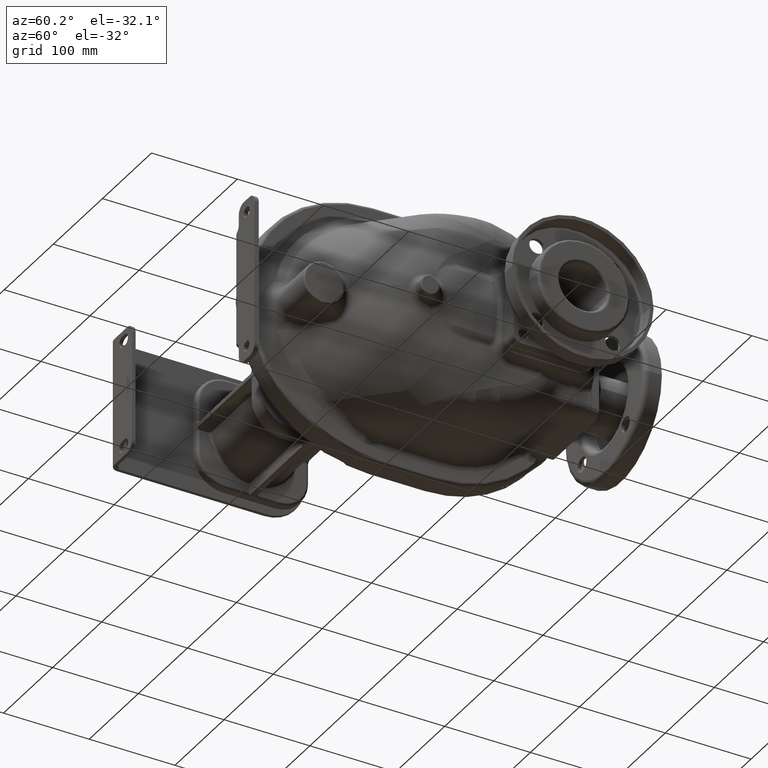
[diagram: clean part render]
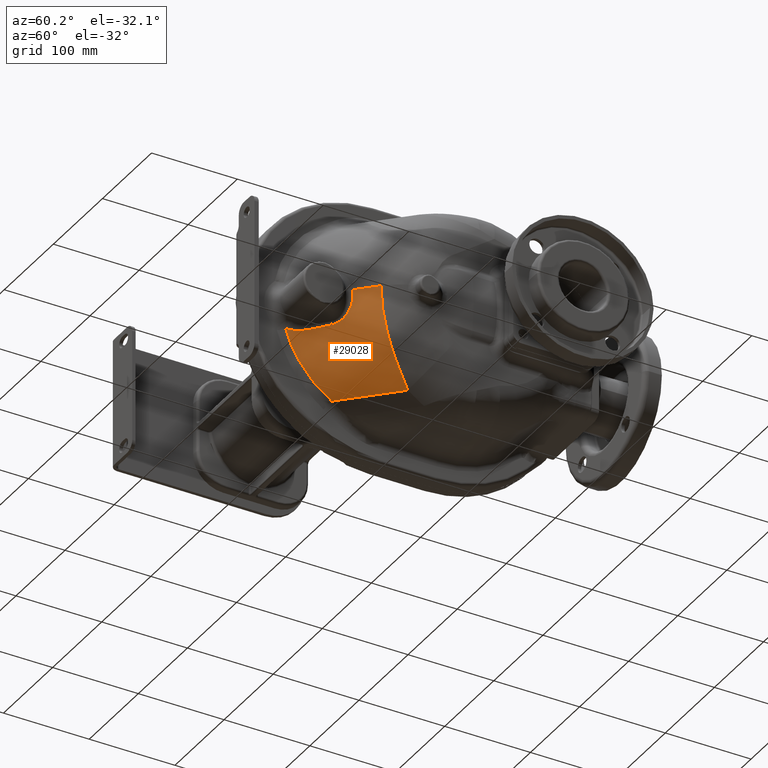
[diagram: same view with one face highlighted and labeled with its STEP entity id]
A machine part, auxiliary view. The second image highlights one B-rep face of the part: STEP entity #29028.
In plain terms, the highlighted face is a SurfaceOfExtrusion surface.
Its self-contained STEP definition (entity closure, byte-faithful):
#3364=CARTESIAN_POINT('',(9.036484673859E0,-8.865028538590E1,
-4.225359777129E1));
#3365=CARTESIAN_POINT('',(8.567354140243E0,-8.910445967960E1,
-4.230272647808E1));
#3366=CARTESIAN_POINT('',(7.660773724450E0,-8.998637526525E1,
-4.238364991512E1));
#3367=CARTESIAN_POINT('',(6.404374484326E0,-9.122090652411E1,
-4.245513230496E1));
#3368=CARTESIAN_POINT('',(5.225063754235E0,-9.239178036355E1,
-4.248268625662E1));
#3369=CARTESIAN_POINT('',(4.104485231569E0,-9.351611516540E1,
-4.247042217464E1));
#3370=CARTESIAN_POINT('',(3.028398013149E0,-9.460739932399E1,
-4.242076526888E1));
#3371=CARTESIAN_POINT('',(1.987343916571E0,-9.567456874212E1,
-4.233526138370E1));
#3372=CARTESIAN_POINT('',(9.770666300559E-1,-9.672146884932E1,
-4.221499214659E1));
#3373=CARTESIAN_POINT('',(-3.911060525644E-3,-9.774910892549E1,
-4.206113353092E1));
#3374=CARTESIAN_POINT('',(-9.576008832840E-1,-9.875907171930E1,
-4.187465243945E1));
#3375=CARTESIAN_POINT('',(-1.885789299034E0,-9.975274591838E1,
-4.165633663829E1));
#3376=CARTESIAN_POINT('',(-2.789000977753E0,-1.007301953211E2,
-4.140711609314E1));
#3377=CARTESIAN_POINT('',(-3.667774195791E0,-1.016914922538E2,
-4.112788023599E1));
#3378=CARTESIAN_POINT('',(-4.522446660868E0,-1.026364914765E2,
-4.081952584300E1));
#3379=CARTESIAN_POINT('',(-5.353311253366E0,-1.035649916730E2,
-4.048294611200E1));
#3380=CARTESIAN_POINT('',(-6.160435574944E0,-1.044765399618E2,
-4.011909191548E1));
#3381=CARTESIAN_POINT('',(-6.943924930935E0,-1.053707117381E2,
-3.972892331272E1));
#3382=CARTESIAN_POINT('',(-7.703836074488E0,-1.062470294961E2,
-3.931340299233E1));
#3383=CARTESIAN_POINT('',(-8.440228710153E0,-1.071050046526E2,
-3.887352931134E1));
#3384=CARTESIAN_POINT('',(-9.153182910151E0,-1.079441860638E2,
-3.841027378736E1));
#3385=CARTESIAN_POINT('',(-9.612867118891E0,-1.084907261164E2,
-3.808656122784E1));
#3386=CARTESIAN_POINT('',(-9.838894303583E0,-1.087607932844E2,
-3.792109184854E1));
#3388=CARTESIAN_POINT('',(2.355913120477E1,-7.455913120477E1,
-4.080452833240E1));
#3389=CARTESIAN_POINT('',(2.261398608233E1,-7.548580450442E1,
-4.086792782465E1));
#3390=CARTESIAN_POINT('',(2.059660271531E1,-7.745691561093E1,
-4.102640498456E1));
#3391=CARTESIAN_POINT('',(1.720908875820E1,-8.074666673672E1,
-4.135835666690E1));
#3392=CARTESIAN_POINT('',(1.340041501602E1,-8.443056651411E1,
-4.177724107024E1));
#3393=CARTESIAN_POINT('',(1.054146957112E1,-8.719323990908E1,
-4.209601310986E1));
#3394=CARTESIAN_POINT('',(9.036484673859E0,-8.865028538590E1,
-4.225359777129E1));
#3396=CARTESIAN_POINT('',(4.264880467959E1,-6.057911738177E1,-5.E0));
#3397=CARTESIAN_POINT('',(4.268035817544E1,-6.054756761221E1,
-5.368596150241E0));
#3398=CARTESIAN_POINT('',(4.273472857060E1,-6.049001244769E1,
-6.107907406461E0));
#3399=CARTESIAN_POINT('',(4.279012479193E1,-6.042008070270E1,
-7.225593659112E0));
#3400=CARTESIAN_POINT('',(4.281893177029E1,-6.036691423640E1,
-8.344567392840E0));
#3401=CARTESIAN_POINT('',(4.282095298289E1,-6.033088534525E1,
-9.459133599527E0));
#3402=CARTESIAN_POINT('',(4.279653666154E1,-6.031182062282E1,
-1.056813447670E1));
#3403=CARTESIAN_POINT('',(4.274566149710E1,-6.030967083988E1,
-1.167551319683E1));
#3404=CARTESIAN_POINT('',(4.266837891649E1,-6.032441645763E1,
-1.278109517951E1));
#3405=CARTESIAN_POINT('',(4.256478612696E1,-6.035603957198E1,
-1.388414241522E1));
#3406=CARTESIAN_POINT('',(4.243528327537E1,-6.040450010694E1,
-1.498061883398E1));
#3407=CARTESIAN_POINT('',(4.228048684685E1,-6.046960310811E1,
-1.606750307398E1));
#3408=CARTESIAN_POINT('',(4.210089258053E1,-6.055120782085E1,
-1.714346692865E1));
#3409=CARTESIAN_POINT('',(4.189715216869E1,-6.064912444714E1,
-1.820651911078E1));
#3410=CARTESIAN_POINT('',(4.167012508911E1,-6.076305799461E1,
-1.925434305591E1));
#3411=CARTESIAN_POINT('',(4.142070148441E1,-6.089270682023E1,
-2.028502684924E1));
#3412=CARTESIAN_POINT('',(4.114984766789E1,-6.103772336746E1,
-2.129685842940E1));
#3413=CARTESIAN_POINT('',(4.085858254007E1,-6.119774489270E1,
-2.228820520080E1));
#3414=CARTESIAN_POINT('',(4.054801904112E1,-6.137234200535E1,
-2.325754833246E1));
#3415=CARTESIAN_POINT('',(4.021928259324E1,-6.156108909023E1,
-2.420351113453E1));
#3416=CARTESIAN_POINT('',(3.987357726588E1,-6.176349396598E1,
-2.512483985482E1));
#3417=CARTESIAN_POINT('',(3.951204816342E1,-6.197910436365E1,
-2.602054831186E1));
#3418=CARTESIAN_POINT('',(3.913587747186E1,-6.220742319864E1,
-2.688978602166E1));
#3419=CARTESIAN_POINT('',(3.874615169299E1,-6.244800636112E1,
-2.773199570316E1));
#3420=CARTESIAN_POINT('',(3.834396358899E1,-6.270038786989E1,
-2.854670491178E1));
#3421=CARTESIAN_POINT('',(3.793040199987E1,-6.296409023107E1,
-2.933350794530E1));
#3422=CARTESIAN_POINT('',(3.750652628331E1,-6.323863739406E1,
-3.009211300402E1));
#3423=CARTESIAN_POINT('',(3.707334277184E1,-6.352356827881E1,
-3.082236859134E1));
#3424=CARTESIAN_POINT('',(3.663181696504E1,-6.381843474932E1,
-3.152419238021E1));
#3425=CARTESIAN_POINT('',(3.618290156982E1,-6.412277072710E1,
-3.219757437936E1));
#3426=CARTESIAN_POINT('',(3.572742359893E1,-6.443618272688E1,
-3.284266665850E1));
#3427=CARTESIAN_POINT('',(3.526610314823E1,-6.475833011193E1,
-3.345976733116E1));
#3428=CARTESIAN_POINT('',(3.479954695424E1,-6.508893523206E1,
-3.404929049847E1));
#3429=CARTESIAN_POINT('',(3.432822172246E1,-6.542780582842E1,
-3.461177282257E1));
#3430=CARTESIAN_POINT('',(3.385267269346E1,-6.577468312080E1,
-3.514759084725E1));
#3431=CARTESIAN_POINT('',(3.337342176119E1,-6.612930926792E1,
-3.565711976499E1));
#3432=CARTESIAN_POINT('',(3.289096972949E1,-6.649143102770E1,
-3.614071127613E1));
#3433=CARTESIAN_POINT('',(3.240576372870E1,-6.686082344170E1,
-3.659873304617E1));
#3434=CARTESIAN_POINT('',(3.191821527243E1,-6.723727457050E1,
-3.703155856120E1));
#3435=CARTESIAN_POINT('',(3.142867319207E1,-6.762061462144E1,
-3.743956117942E1));
#3436=CARTESIAN_POINT('',(3.093746673196E1,-6.801067578082E1,
-3.782310533607E1));
#3437=CARTESIAN_POINT('',(3.044488327804E1,-6.840731976273E1,
-3.818252946016E1));
#3438=CARTESIAN_POINT('',(2.995127744402E1,-6.881034191112E1,
-3.851810120750E1));
#3439=CARTESIAN_POINT('',(2.945697025293E1,-6.921955681616E1,
-3.883007828050E1));
#3440=CARTESIAN_POINT('',(2.896234071172E1,-6.963471939496E1,
-3.911866459925E1));
#3441=CARTESIAN_POINT('',(2.846769074688E1,-7.005563551667E1,
-3.938410154699E1));
#3442=CARTESIAN_POINT('',(2.797325952440E1,-7.048215942156E1,
-3.962662557595E1));
#3443=CARTESIAN_POINT('',(2.747922818843E1,-7.091418289327E1,
-3.984649125456E1));
#3444=CARTESIAN_POINT('',(2.698568301145E1,-7.135168600218E1,
-4.004392310399E1));
#3445=CARTESIAN_POINT('',(2.649281788769E1,-7.179454079744E1,
-4.021909618174E1));
#3446=CARTESIAN_POINT('',(2.600092638922E1,-7.224253365450E1,
-4.037208870906E1));
#3447=CARTESIAN_POINT('',(2.550999941002E1,-7.269570596999E1,
-4.050309830111E1));
#3448=CARTESIAN_POINT('',(2.501982315592E1,-7.315431347521E1,
-4.061224191511E1));
#3449=CARTESIAN_POINT('',(2.453085240469E1,-7.361797123324E1,
-4.069949647084E1));
#3450=CARTESIAN_POINT('',(2.404360381527E1,-7.408623266672E1,
-4.076479275773E1));
#3451=CARTESIAN_POINT('',(2.372037910160E1,-7.440103583064E1,
-4.079371013577E1));
#3452=CARTESIAN_POINT('',(2.355913120477E1,-7.455913120477E1,
-4.080452833240E1));
#3454=DIRECTION('',(7.071067811865E-1,7.071067811865E-1,0.E0));
#3455=VECTOR('',#3454,2.948447187635E1);
#3456=CARTESIAN_POINT('',(4.264880467959E1,-6.057911738177E1,-5.E0));
#3457=LINE('',#3456,#3455);
#3458=CARTESIAN_POINT('',(6.349747468306E1,-3.973044737830E1,-5.E0));
#3459=CARTESIAN_POINT('',(6.349747469583E1,-3.973044697408E1,
-6.034536997938E0));
#3460=CARTESIAN_POINT('',(6.349262854527E1,-3.971020905824E1,
-8.104642207348E0));
#3461=CARTESIAN_POINT('',(6.347075087034E1,-3.961899000533E1,
-1.121122971413E1));
#3462=CARTESIAN_POINT('',(6.343417030181E1,-3.946686811769E1,
-1.431690827398E1));
#3463=CARTESIAN_POINT('',(6.338278832285E1,-3.925388291458E1,
-1.741953993564E1));
#3464=CARTESIAN_POINT('',(6.331647800851E1,-3.898016201200E1,
-2.051707996895E1));
#3465=CARTESIAN_POINT('',(6.323506029614E1,-3.864594801399E1,
-2.360749325080E1));
#3466=CARTESIAN_POINT('',(6.313835029919E1,-3.825155192240E1,
-2.668873802066E1));
#3467=CARTESIAN_POINT('',(6.302611822071E1,-3.779741843352E1,
-2.975866897294E1));
#3468=CARTESIAN_POINT('',(6.289810146397E1,-3.728396363557E1,
-3.281576466400E1));
#3469=CARTESIAN_POINT('',(6.275398395780E1,-3.671161974538E1,
-3.585869311218E1));
#3470=CARTESIAN_POINT('',(6.259338008173E1,-3.608085930181E1,
-3.888619113303E1));
#3471=CARTESIAN_POINT('',(6.241591515637E1,-3.539227911530E1,
-4.189648301819E1));
#3472=CARTESIAN_POINT('',(6.222116520836E1,-3.464667889660E1,
-4.488745218995E1));
#3473=CARTESIAN_POINT('',(6.200870674300E1,-3.384490022087E1,
-4.785707835807E1));
#3474=CARTESIAN_POINT('',(6.177804727938E1,-3.298792763258E1,
-5.080331856760E1));
#3475=CARTESIAN_POINT('',(6.152869333773E1,-3.207681660695E1,
-5.372413694279E1));
#3476=CARTESIAN_POINT('',(6.126008875699E1,-3.111274677118E1,
-5.661751473908E1));
#3477=CARTESIAN_POINT('',(6.097171160382E1,-3.009714096368E1,
-5.948100341886E1));
#3478=CARTESIAN_POINT('',(6.066299183671E1,-2.903153489224E1,
-6.231228534014E1));
#3479=CARTESIAN_POINT('',(6.033338433823E1,-2.791770935325E1,
-6.510875905877E1));
#3480=CARTESIAN_POINT('',(5.998233255773E1,-2.675760543909E1,
-6.786785067322E1));
#3481=CARTESIAN_POINT('',(5.960931543531E1,-2.555345113423E1,
-7.058673112656E1));
#3482=CARTESIAN_POINT('',(5.921383898104E1,-2.430768648614E1,
-7.326253857441E1));
#3483=CARTESIAN_POINT('',(5.879547096438E1,-2.302305300995E1,
-7.589222447914E1));
#3484=CARTESIAN_POINT('',(5.835383044742E1,-2.170251547091E1,
-7.847275758879E1));
#3485=CARTESIAN_POINT('',(5.788861933260E1,-2.034930795805E1,
-8.100104618230E1));
#3486=CARTESIAN_POINT('',(5.739962322698E1,-1.896688940009E1,
-8.347404657274E1));
#3487=CARTESIAN_POINT('',(5.688674466963E1,-1.755894913735E1,
-8.588874384936E1));
#3488=CARTESIAN_POINT('',(5.635000305098E1,-1.612937604311E1,
-8.824222347652E1));
#3489=CARTESIAN_POINT('',(5.578955832984E1,-1.468226763840E1,
-9.053166131765E1));
#3490=CARTESIAN_POINT('',(5.520567951736E1,-1.322169592493E1,
-9.275463036059E1));
#3491=CARTESIAN_POINT('',(5.459879031884E1,-1.175184467292E1,
-9.490887530533E1));
#3492=CARTESIAN_POINT('',(5.396939042751E1,-1.027695406452E1,
-9.699244807655E1));
#3493=CARTESIAN_POINT('',(5.331840041034E1,-8.801316502194E0,
-9.900338254652E1));
#3494=CARTESIAN_POINT('',(5.264650618843E1,-7.328805567493E0,
-1.009407496669E2));
#3495=CARTESIAN_POINT('',(5.195434474524E1,-5.862577646732E0,
-1.028045519849E2));
#3496=CARTESIAN_POINT('',(5.124257990403E1,-4.406037376131E0,
-1.045947215127E2));
#3497=CARTESIAN_POINT('',(5.051237938289E1,-2.962182554692E0,
-1.063113094864E2));
#3498=CARTESIAN_POINT('',(4.976553613114E1,-1.533705385553E0,
-1.079543053936E2));
#3499=CARTESIAN_POINT('',(4.925697677224E1,-5.946815742922E-1,
-1.090003938537E2));
#3500=CARTESIAN_POINT('',(4.9E1,-1.287565176259E-1,-1.095115623588E2));
#3502=DIRECTION('',(-7.071068106080E-1,-7.071067517651E-1,4.160645979085E-8));
#3503=VECTOR('',#3502,7.990306627401E1);
#3504=CARTESIAN_POINT('',(4.9E1,-1.287565176259E-1,-1.095115623588E2));
#3505=LINE('',#3504,#3503);
#3506=CARTESIAN_POINT('',(-7.5E0,-5.662875651763E1,-1.095115623587E2));
#3507=CARTESIAN_POINT('',(-7.543701661136E0,-5.739033927039E1,
-1.090039263959E2));
#3508=CARTESIAN_POINT('',(-7.629400788982E0,-5.890051987191E1,
-1.079745002439E2));
#3509=CARTESIAN_POINT('',(-7.753238429435E0,-6.112636996382E1,
-1.063885317633E2));
#3510=CARTESIAN_POINT('',(-7.872395093534E0,-6.331223447142E1,
-1.047614761047E2));
#3511=CARTESIAN_POINT('',(-7.987018938979E0,-6.545760114460E1,
-1.030940561353E2));
#3512=CARTESIAN_POINT('',(-8.097209205785E0,-6.756196314381E1,
-1.013869851564E2));
#3513=CARTESIAN_POINT('',(-8.203039306093E0,-6.962480383992E1,
-9.964096533427E1));
#3514=CARTESIAN_POINT('',(-8.304637399412E0,-7.164570096389E1,
-9.785667313635E1));
#3515=CARTESIAN_POINT('',(-8.402165514987E0,-7.362441267536E1,
-9.603464403248E1));
#3516=CARTESIAN_POINT('',(-8.495760121735E0,-7.556068889779E1,
-9.417537447079E1));
#3517=CARTESIAN_POINT('',(-8.585541728697E0,-7.745413471418E1,
-9.227947327321E1));
#3518=CARTESIAN_POINT('',(-8.671611825619E0,-7.930416707674E1,
-9.034773730828E1));
#3519=CARTESIAN_POINT('',(-8.754052882623E0,-8.111024627716E1,
-8.838092105638E1));
#3520=CARTESIAN_POINT('',(-8.832998269662E0,-8.287186833472E1,
-8.637981655424E1));
#3521=CARTESIAN_POINT('',(-8.908573912743E0,-8.458853513860E1,
-8.434522589538E1));
#3522=CARTESIAN_POINT('',(-8.980886321821E0,-8.625975359984E1,
-8.227794528924E1));
#3523=CARTESIAN_POINT('',(-9.050025403428E0,-8.788501326112E1,
-8.017879682632E1));
#3524=CARTESIAN_POINT('',(-9.116066719458E0,-8.946380588596E1,
-7.804860770072E1));
#3525=CARTESIAN_POINT('',(-9.179061592277E0,-9.099562391779E1,
-7.588819727984E1));
#3526=CARTESIAN_POINT('',(-9.239129632844E0,-9.248008991612E1,
-7.369831430951E1));
#3527=CARTESIAN_POINT('',(-9.296378910033E0,-9.391682923959E1,
-7.147969640409E1));
#3528=CARTESIAN_POINT('',(-9.350898419752E0,-9.530543437481E1,
-6.923311270827E1));
#3529=CARTESIAN_POINT('',(-9.402755914754E0,-9.664535245746E1,
-6.695957378518E1));
#3530=CARTESIAN_POINT('',(-9.452004913713E0,-9.793605136859E1,
-6.466009204482E1));
#3531=CARTESIAN_POINT('',(-9.498682754420E0,-9.917704448678E1,
-6.233562144868E1));
#3532=CARTESIAN_POINT('',(-9.542889426294E0,-1.003679813396E2,
-5.998701253554E1));
#3533=CARTESIAN_POINT('',(-9.584707200497E0,-1.015085037625E2,
-5.761511998130E1));
#3534=CARTESIAN_POINT('',(-9.624200545723E0,-1.025982044891E2,
-5.522090048293E1));
#3535=CARTESIAN_POINT('',(-9.661416703632E0,-1.036366329807E2,
-5.280543097937E1));
#3536=CARTESIAN_POINT('',(-9.696386568285E0,-1.046233568412E2,
-5.036978514943E1));
#3537=CARTESIAN_POINT('',(-9.729131886943E0,-1.055579940909E2,
-4.791495390966E1));
#3538=CARTESIAN_POINT('',(-9.759734432017E0,-1.064402488516E2,
-4.544191507518E1));
#3539=CARTESIAN_POINT('',(-9.788254852346E0,-1.072698165729E2,
-4.295166151459E1));
#3540=CARTESIAN_POINT('',(-9.814738064290E0,-1.080464085670E2,
-4.044517984290E1));
#3541=CARTESIAN_POINT('',(-9.831058349531E0,-1.085286042557E2,
-3.876404696494E1));
#3542=CARTESIAN_POINT('',(-9.838881868691E0,-1.087607819797E2,
-3.792111471783E1));
#22201=CARTESIAN_POINT('',(4.9E1,-1.287565176259E-1,-1.095115623588E2));
#22203=VERTEX_POINT('',#22201);
#22239=VERTEX_POINT('',#3458);
#22450=VERTEX_POINT('',#3364);
#22451=VERTEX_POINT('',#3386);
#22452=VERTEX_POINT('',#3388);
#22454=VERTEX_POINT('',#3396);
#22525=CARTESIAN_POINT('',(-7.500002350819E0,-5.662875416671E1,
-1.095115590343E2));
#22526=VERTEX_POINT('',#22525);
#29006=CARTESIAN_POINT('',(-8.75E1,-6.272792206136E1,-5.E0));
#29007=DIRECTION('',(7.071067811865E-1,7.071067811865E-1,0.E0));
#29008=DIRECTION('',(7.071067811865E-1,-7.071067811865E-1,0.E0));
#29009=AXIS2_PLACEMENT_3D('',#29006,#29007,#29008);
#29014=DIRECTION('',(7.071067811865E-1,7.071067811865E-1,0.E0));
#29015=VECTOR('',#29014,1.E0);
#29016=SURFACE_OF_LINEAR_EXTRUSION('',#29010,#29015);
#29018=ORIENTED_EDGE('',*,*,#29017,.F.);
#29020=ORIENTED_EDGE('',*,*,#29019,.F.);
#29021=ORIENTED_EDGE('',*,*,#28990,.F.);
#29022=ORIENTED_EDGE('',*,*,#28725,.T.);
#29023=ORIENTED_EDGE('',*,*,#25038,.T.);
#29024=ORIENTED_EDGE('',*,*,#28140,.T.);
#29025=ORIENTED_EDGE('',*,*,#28217,.T.);
#29026=EDGE_LOOP('',(#29018,#29020,#29021,#29022,#29023,#29024,#29025));
#29027=FACE_OUTER_BOUND('',#29026,.F.);
#3387=B_SPLINE_CURVE_WITH_KNOTS('',3,(#3364,#3365,#3366,#3367,#3368,#3369,#3370,
#3371,#3372,#3373,#3374,#3375,#3376,#3377,#3378,#3379,#3380,#3381,#3382,#3383,
#3384,#3385,#3386),.UNSPECIFIED.,.F.,.F.,(4,1,1,1,1,1,1,1,1,1,1,1,1,1,1,1,1,1,1,
1,4),(0.E0,5.E-2,1.E-1,1.5E-1,2.E-1,2.5E-1,3.E-1,3.5E-1,4.E-1,4.5E-1,5.E-1,
5.5E-1,6.E-1,6.5E-1,7.E-1,7.5E-1,8.E-1,8.5E-1,9.E-1,9.5E-1,1.E0),.UNSPECIFIED.);
#3395=B_SPLINE_CURVE_WITH_KNOTS('',3,(#3388,#3389,#3390,#3391,#3392,#3393,
#3394),.UNSPECIFIED.,.F.,.F.,(4,1,1,1,4),(0.E0,2.5E-1,5.E-1,7.5E-1,1.E0),
.UNSPECIFIED.);
#3453=B_SPLINE_CURVE_WITH_KNOTS('',3,(#3396,#3397,#3398,#3399,#3400,#3401,#3402,
#3403,#3404,#3405,#3406,#3407,#3408,#3409,#3410,#3411,#3412,#3413,#3414,#3415,
#3416,#3417,#3418,#3419,#3420,#3421,#3422,#3423,#3424,#3425,#3426,#3427,#3428,
#3429,#3430,#3431,#3432,#3433,#3434,#3435,#3436,#3437,#3438,#3439,#3440,#3441,
#3442,#3443,#3444,#3445,#3446,#3447,#3448,#3449,#3450,#3451,#3452),
.UNSPECIFIED.,.F.,.F.,(4,1,1,1,1,1,1,1,1,1,1,1,1,1,1,1,1,1,1,1,1,1,1,1,1,1,1,1,
1,1,1,1,1,1,1,1,1,1,1,1,1,1,1,1,1,1,1,1,1,1,1,1,1,1,4),(0.E0,1.851851851852E-2,
3.703703703704E-2,5.555555555556E-2,7.407407407407E-2,9.259259259259E-2,
1.111111111111E-1,1.296296296296E-1,1.481481481481E-1,1.666666666667E-1,
1.851851851852E-1,2.037037037037E-1,2.222222222222E-1,2.407407407407E-1,
2.592592592593E-1,2.777777777778E-1,2.962962962963E-1,3.148148148148E-1,
3.333333333333E-1,3.518518518519E-1,3.703703703704E-1,3.888888888889E-1,
4.074074074074E-1,4.259259259259E-1,4.444444444444E-1,4.629629629630E-1,
4.814814814815E-1,5.E-1,5.185185185185E-1,5.370370370370E-1,5.555555555556E-1,
5.740740740741E-1,5.925925925926E-1,6.111111111111E-1,6.296296296296E-1,
6.481481481481E-1,6.666666666667E-1,6.851851851852E-1,7.037037037037E-1,
7.222222222222E-1,7.407407407407E-1,7.592592592593E-1,7.777777777778E-1,
7.962962962963E-1,8.148148148148E-1,8.333333333333E-1,8.518518518519E-1,
8.703703703704E-1,8.888888888889E-1,9.074074074074E-1,9.259259259259E-1,
9.444444444444E-1,9.629629629630E-1,9.814814814815E-1,1.E0),.UNSPECIFIED.);
#3501=B_SPLINE_CURVE_WITH_KNOTS('',3,(#3458,#3459,#3460,#3461,#3462,#3463,#3464,
#3465,#3466,#3467,#3468,#3469,#3470,#3471,#3472,#3473,#3474,#3475,#3476,#3477,
#3478,#3479,#3480,#3481,#3482,#3483,#3484,#3485,#3486,#3487,#3488,#3489,#3490,
#3491,#3492,#3493,#3494,#3495,#3496,#3497,#3498,#3499,#3500),.UNSPECIFIED.,.F.,
.F.,(4,1,1,1,1,1,1,1,1,1,1,1,1,1,1,1,1,1,1,1,1,1,1,1,1,1,1,1,1,1,1,1,1,1,1,1,1,
1,1,1,4),(0.E0,2.5E-2,5.E-2,7.5E-2,1.E-1,1.25E-1,1.5E-1,1.75E-1,2.E-1,2.25E-1,
2.5E-1,2.75E-1,3.E-1,3.25E-1,3.5E-1,3.75E-1,4.E-1,4.25E-1,4.5E-1,4.75E-1,5.E-1,
5.25E-1,5.5E-1,5.75E-1,6.E-1,6.25E-1,6.5E-1,6.75E-1,7.E-1,7.25E-1,7.5E-1,
7.75E-1,8.E-1,8.25E-1,8.5E-1,8.75E-1,9.E-1,9.25E-1,9.5E-1,9.75E-1,1.E0),
.UNSPECIFIED.);
#3543=B_SPLINE_CURVE_WITH_KNOTS('',3,(#3506,#3507,#3508,#3509,#3510,#3511,#3512,
#3513,#3514,#3515,#3516,#3517,#3518,#3519,#3520,#3521,#3522,#3523,#3524,#3525,
#3526,#3527,#3528,#3529,#3530,#3531,#3532,#3533,#3534,#3535,#3536,#3537,#3538,
#3539,#3540,#3541,#3542),.UNSPECIFIED.,.F.,.F.,(4,1,1,1,1,1,1,1,1,1,1,1,1,1,1,1,
1,1,1,1,1,1,1,1,1,1,1,1,1,1,1,1,1,1,4),(0.E0,2.941176470588E-2,
5.882352941176E-2,8.823529411765E-2,1.176470588235E-1,1.470588235294E-1,
1.764705882353E-1,2.058823529412E-1,2.352941176471E-1,2.647058823529E-1,
2.941176470588E-1,3.235294117647E-1,3.529411764706E-1,3.823529411765E-1,
4.117647058824E-1,4.411764705882E-1,4.705882352941E-1,5.E-1,5.294117647059E-1,
5.588235294118E-1,5.882352941176E-1,6.176470588235E-1,6.470588235294E-1,
6.764705882353E-1,7.058823529412E-1,7.352941176471E-1,7.647058823529E-1,
7.941176470588E-1,8.235294117647E-1,8.529411764706E-1,8.823529411765E-1,
9.117647058824E-1,9.411764705882E-1,9.705882352941E-1,1.E0),.UNSPECIFIED.);
#25038=EDGE_CURVE('',#22239,#22203,#3501,.T.);
#28140=EDGE_CURVE('',#22203,#22526,#3505,.T.);
#28217=EDGE_CURVE('',#22526,#22451,#3543,.T.);
#28725=EDGE_CURVE('',#22454,#22239,#3457,.T.);
#28990=EDGE_CURVE('',#22454,#22452,#3453,.T.);
#29010=ELLIPSE('',#29009,9.050966799188E1,1.28E2);
#29017=EDGE_CURVE('',#22450,#22451,#3387,.T.);
#29019=EDGE_CURVE('',#22452,#22450,#3395,.T.);
#29028=ADVANCED_FACE('',(#29027),#29016,.T.);